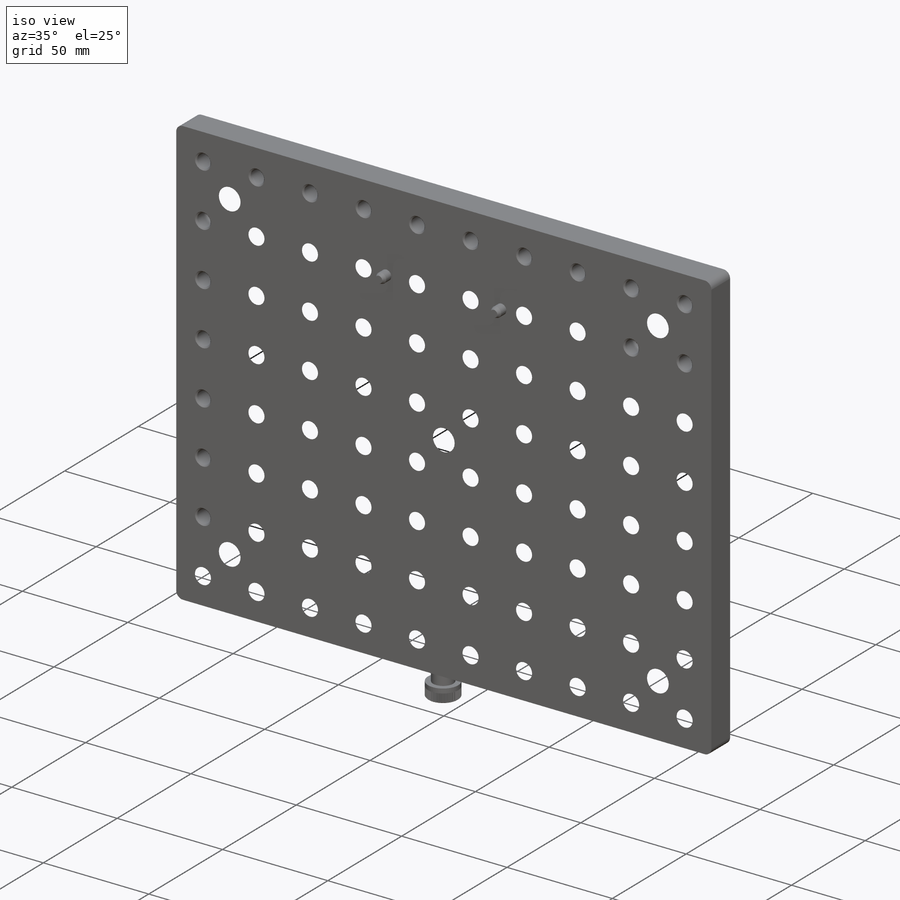
[diagram: iso view]
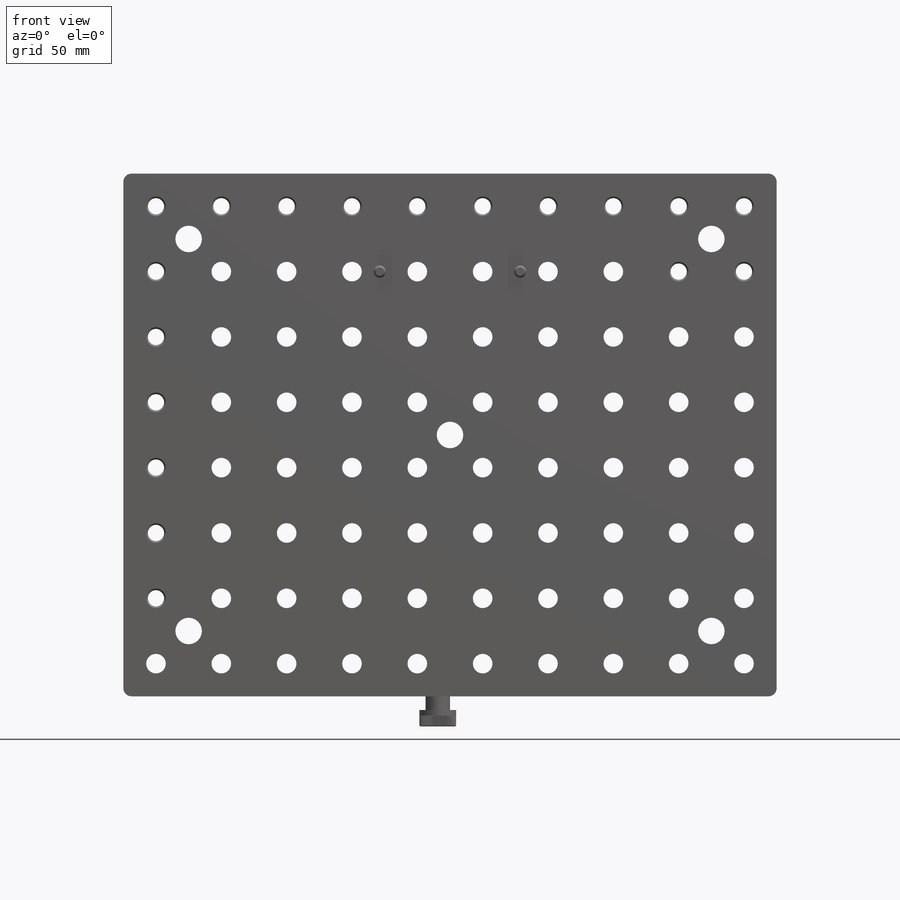
[diagram: front view]
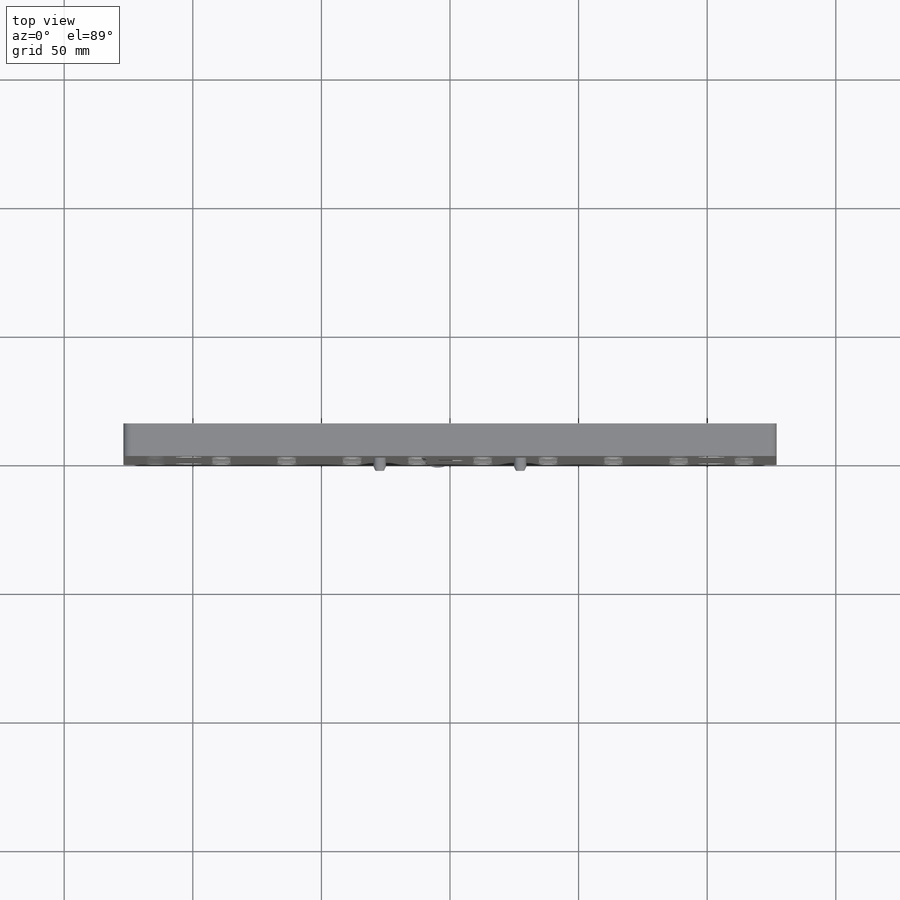
[diagram: top view]
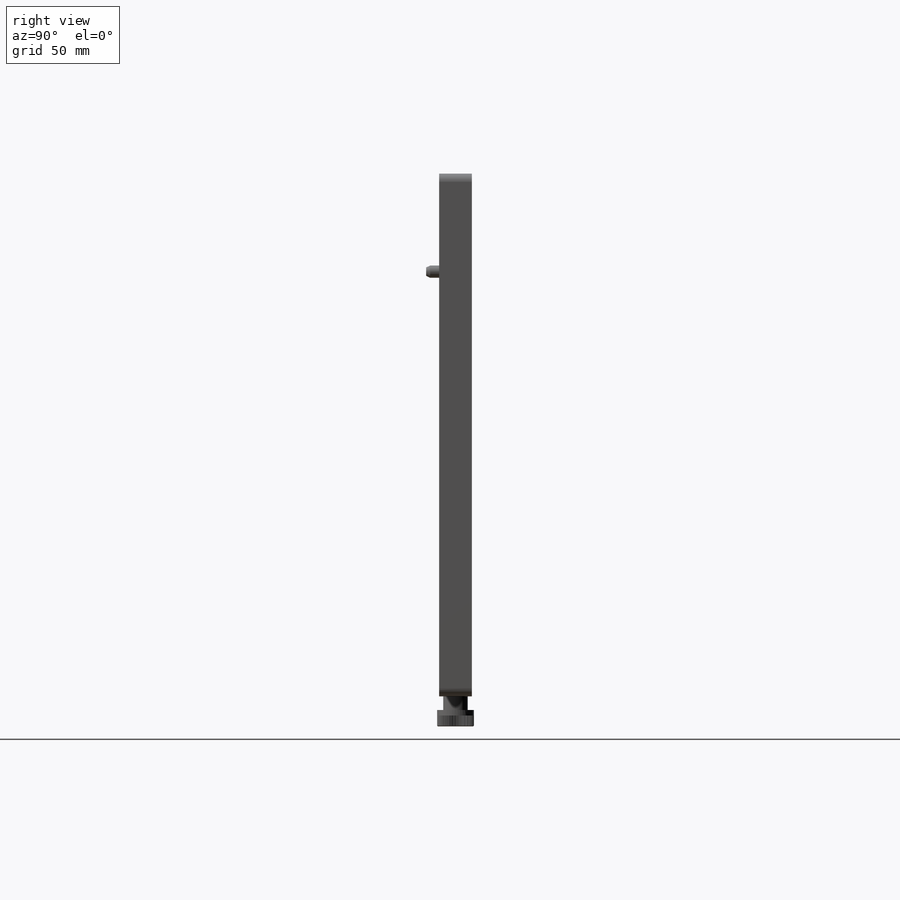
[diagram: right view]
SOLIDWORKS PART (.sldprt)
format: sldprt  version: not decoded by parser v0  size: 3,528,704 bytes
history: native  units: mm
features: sketch x35, plane x11, hole x3, move_body x3, material x1, extrude x1, mirror x1, cut_extrude x1 + 3 further entries (+26 scaffold rows collapsed; 13 parser-record rows omitted)
feature tree (98):
  scaffold x26  (default folders/planes/origin — collapsed)
  material  "6061-T6 Al"
  sketch  "Sketch3"  dims[c1.D3=3.175mm c1.D1=457.2mm c1.D2=203.2mm c2.D1=203.2mm c2.D2=254.0mm c2.D4=7.1374mm c2.D5=101.6mm c2.D6=304.8mm c2.D7=152.4mm]
  extrude  "Boss-Extrude1"  Depth=12.7mm
  hole  "1/4-20 Tapped Hole1"  Diameter=6.35mm Depth=12.7mm
  sketch  "Sketch6"  dims[D1=12.7mm D2=12.7mm D3=10.0 D4=8.0]
  sketch  "Sketch5"  dims[hole-wizard template sketch: 46 standard entries collapsed; hole parameters kept: c15.Thread Major Dia.=6.35mm c15.Thru Tap Drill Depth=12.7mm c15.Near C'Sink Dia.=7.62mm c15.D4=~3.666174mm c15.Near C'Sink Angle=90.0deg c15.Far C'Sink Dia.=7.62mm c15.D6=~9.919017mm c15.Far C'Sink Angle=90.0deg]
  hole  "CBORE for 1/4 Socket Head Cap Screw1"  Diameter=6.7564mm Depth=12.7mm
  sketch  "Sketch8"  dims[c1.D1=152.4mm c1.D2=203.2mm c1.D3=254.0mm c1.D4=161.29mm c1.D5=161.925mm c2.D4=165.1mm c2.D5=161.925mm c2.D1=152.4mm c2.D3=254.0mm c2.D2=203.2mm]
  sketch  "Sketch7"  dims[hole-wizard template sketch: 43 standard entries collapsed; hole parameters kept: c12.C'Bore Dia.=10.3124mm c12.C'Bore Depth=6.731mm]
  plane  "Front Plane-MS16555-640 (Dowel Pin, 0.1877D, 0.63L)"
  plane  "Top Plane-MS16555-640 (Dowel Pin, 0.1877D, 0.63L)"
  plane  "Right Plane-MS16555-640 (Dowel Pin, 0.1877D, 0.63L)"
  sketch  "Sketch1-MS16555-640 (Dowel Pin, 0.1877D, 0.63L)"  dims[c1.D3=34.925mm c1.D4=~87.988181mm c1.D8=98.425mm c1.D1=96.52mm c2.D3=57.15mm c2.D1=96.52mm c2.D5=12.7mm c2.D4=12.7mm c2.D9=12.7mm c3.D1=152.4mm c3.D2=203.2mm c4.D1=96.52mm c4.D2=127.0mm c5.D2=90.0deg c6.D2=44.45mm c6.D4=~40.411153mm c6.D3=133.35mm c7.D4=~39.979893mm c8.D4=45.0deg c8.D1=55.88mm c8.D2=19.05mm c8.D5=114.3mm c8.D6=19.05mm c8.D7=22.225mm c8.D8=~28.030256mm c9.D8=45.0deg c9.D1=~4.76758mm c9.D2=38.1mm c9.D3=0.762mm c9.D4=80.0deg c9.D5=38.1mm c10.D2=38.1mm c10.D5=0.762mm c11.D2=15.875mm c11.D5=2.921mm c11.D6=1.5748mm c11.D3=~4.388183mm c12.D3=4.0deg c12.D4=15.1384mm c12.D5=2.921mm c13.D5=25.0deg c13.D7=0.3556mm c13.D1=~4.76758mm c13.D4=1.5748mm c13.D6=~10.540698mm c14.D7=4.2418mm]
  "MS16555-640 (Dowel Pin, 0.1877D, 0.63L)"
  parser-record x13  (decoder bookkeeping rows leaked as tree rows — omitted from the tree; the rows remain in map.json)
  move_body  "Body-Move/Copy2"
  mirror  "Mirror1"
  hole  "5/16-18 Tapped Hole1"  Diameter=6.5278mm Depth=22.9362mm
  sketch  "Sketch10"  dims[D1=4.7625mm D2=76.2mm]
  sketch  "Sketch9"  dims[hole-wizard template sketch: 28 standard entries collapsed; hole parameters kept: c8.Tap Drill Dia.=6.5278mm c8.Tap Drill Depth=22.9362mm c8.Thread Major Dia.=7.9375mm c8.Thread Depth=15.875mm c8.D5=~14.816244mm c8.Drill Angle=118.0deg]
  plane  "Front-SST_Shoulder Screw, .375 X .250L"
  plane  "Top-SST_Shoulder Screw, .375 X .250L"
  plane  "Right-SST_Shoulder Screw, .375 X .250L"
  sketch  "Sketch1-SST_Shoulder Screw, .375 X .250L"  dims[Head Dia=14.2875mm]
  sketch  "Sketch2-SST_Shoulder Screw, .375 X .250L"  dims[Hex Key=4.7625mm D1=~4.582718mm]
  sketch  "Sketch4-SST_Shoulder Screw, .375 X .250L"  dims[Shoulder Dia=9.525mm]
  sketch  "Sketch5-SST_Shoulder Screw, .375 X .250L"  dims[Thread Dia=7.9375mm]
  sketch  "Sketch12-SST_Shoulder Screw, .375 X .250L"
  sketch  "Sketch13-SST_Shoulder Screw, .375 X .250L"  dims[c1.D1=~1.910764mm c2.D1=60.0deg c2.D2=~0.176389mm c2.D3=~0.705556mm]
  sketch  "Sketch18-SST_Shoulder Screw, .375 X .250L"  dims[c1.D1=~3.815323mm c2.D1=45.0deg c2.D2=~1.763889mm]
  plane  "Plane1-SST_Shoulder Screw, .375 X .250L"
  sketch  "Sketch10-SST_Shoulder Screw, .375 X .250L"  dims[c1.D4=~0.065314mm c1.D1=~11.293235mm c2.D1=20.0deg c3.D1=~0.981895mm c4.D1=90.0deg c4.D2=~11.925286mm c5.D2=5.0deg c5.D3=~0.104592mm c5.D5=~0.291351mm]
  sketch  "Sketch14-SST_Shoulder Screw, .375 X .250L"
  sketch  "Sketch15-SST_Shoulder Screw, .375 X .250L"  dims[D1=~5.291667mm]
  sketch  "Sketch16-SST_Shoulder Screw, .375 X .250L"  dims[Shoulder Length=6.35mm]
  sketch  "Sketch17-SST_Shoulder Screw, .375 X .250L"  dims[Shoulder Dia=9.525mm]
  sketch  "Sketch19-SST_Shoulder Screw, .375 X .250L"
  sketch  "Sketch24"  dims[D1=9.525mm]
  cut_extrude  "Cut-Extrude1"  Depth=1.016mm
  "SST_Shoulder Screw, .375 X .250L"
  move_body  "Body-Move/Copy4"
  plane  "Front-SST_Shoulder Screw, .375 X .250L2"
  plane  "Top-SST_Shoulder Screw, .375 X .250L2"
  plane  "Right-SST_Shoulder Screw, .375 X .250L2"
  sketch  "Sketch1-SST_Shoulder Screw, .375 X .250L2"  dims[Head Dia=14.2875mm]
  sketch  "Sketch2-SST_Shoulder Screw, .375 X .250L2"  dims[Hex Key=4.7625mm D1=~4.582718mm]
  sketch  "Sketch4-SST_Shoulder Screw, .375 X .250L2"  dims[Shoulder Dia=9.525mm]
  sketch  "Sketch5-SST_Shoulder Screw, .375 X .250L2"  dims[Thread Dia=7.9375mm]
  sketch  "Sketch12-SST_Shoulder Screw, .375 X .250L2"
  sketch  "Sketch13-SST_Shoulder Screw, .375 X .250L2"  dims[c1.D1=~1.910764mm c2.D1=60.0deg c2.D2=~0.176389mm c2.D3=~0.705556mm]
  sketch  "Sketch18-SST_Shoulder Screw, .375 X .250L2"  dims[c1.D1=~3.815323mm c2.D1=45.0deg c2.D2=~1.763889mm]
  plane  "Plane1-SST_Shoulder Screw, .375 X .250L2"
  sketch  "Sketch10-SST_Shoulder Screw, .375 X .250L2"  dims[c1.D4=~0.065314mm c1.D1=~11.293235mm c2.D1=20.0deg c3.D1=~0.981895mm c4.D1=90.0deg c4.D2=~11.925286mm c5.D2=5.0deg c5.D3=~0.104592mm c5.D5=~0.291351mm]
  sketch  "Sketch14-SST_Shoulder Screw, .375 X .250L2"
  sketch  "Sketch15-SST_Shoulder Screw, .375 X .250L2"  dims[D1=~5.291667mm]
  sketch  "Sketch16-SST_Shoulder Screw, .375 X .250L2"  dims[Shoulder Length=6.35mm]
  sketch  "Sketch17-SST_Shoulder Screw, .375 X .250L2"  dims[Shoulder Dia=9.525mm]
  sketch  "Sketch19-SST_Shoulder Screw, .375 X .250L2"
  "SST_Shoulder Screw, .375 X .250L2"
  move_body  "Body-Move/Copy6"
decode coverage: 34 of 44 modeling features carry decoded parameters; 3 rows unclassified (native names shown)
note: ~ marks probable driven/reference dimensions
note: suppression state not decoded; provenance and decode notes live in map.json
